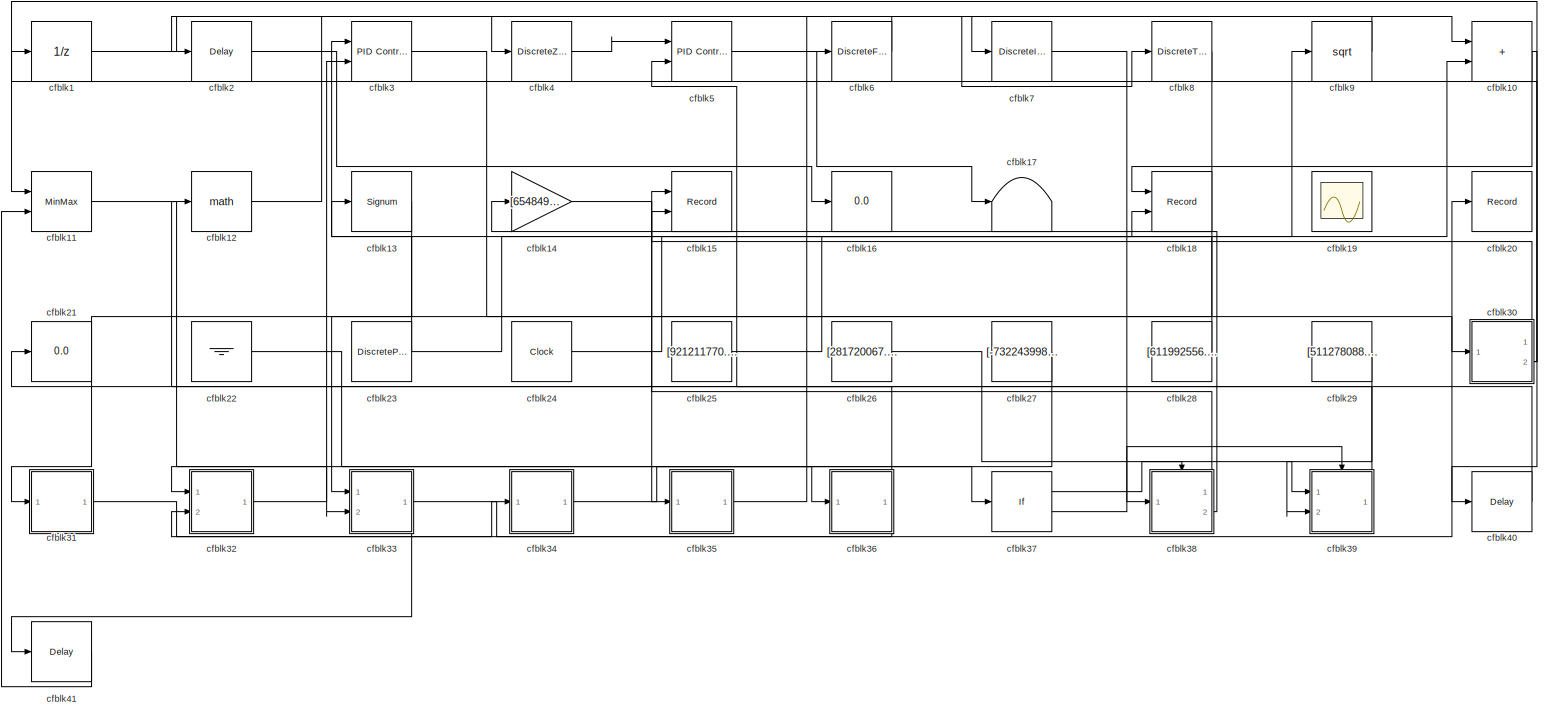
[diagram: root canvas - part 1/1, most of the canvas]
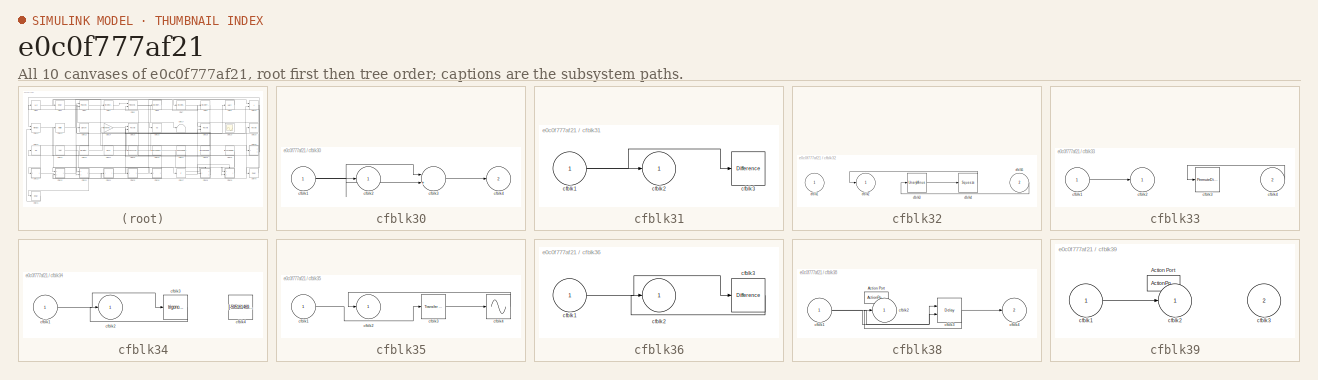
[diagram: thumbnail index - all 10 canvases of the model, root first then tree order]
MODEL slx_e0c0f777af21
KIND model
CONFIG AbsTol = auto
CONFIG EnableMultiTasking = off
CONFIG FixedStep = auto
CONFIG MaxStep = auto
CONFIG MinStep = auto
CONFIG RelTol = 1e-3
CONFIG SampleTimeConstraint = Unconstrained
CONFIG SolverName = VariableStepAuto
CONFIG StartTime = 0.0
CONFIG StopTime = 10.0
BLOCK [UnitDelay] cfblk1
  HasFrameUpgradeWarning = on
BLOCK [Sum] cfblk10
  IconShape = rectangular
  Ports = [2, 1]
BLOCK [MinMax] cfblk11
  Function = max
  Inputs = 2
  Ports = [2, 1]
BLOCK [Math] cfblk12
  Ports = [1, 1]
BLOCK [Signum] cfblk13
BLOCK [Gain] cfblk14
  Gain = [654849427.603270]
BLOCK [Record] cfblk15
  CompatibilityTag = XY
  FileSettingsInternal = {"entries":[{"content":{"excelSettings":{"content":{},"type":"Streamout.ExcelSettings"}},"type":"Streamout.FileSettingStorage","uuid":"87b09053-a77a-4a9e-8bec-8608d5d060ef"}],"packageUris":["http://schema.mathworks.com/mf0/streamout_blocks/R2020a"],"version":"1.0"}
  Layout = [1 1]
  Ports = [2]
  SignalsInternal = {"entries":[{"content":{"signals":[{"content":{"blockPath":["sampleModel264/cfblk15"],"channel":[],"dimensions":[1],"domain":"sampleModel264/cfblk15","lineColor":"#a2142f","plots":[1],"port":1,"sid":[""],"signalID":10963,"signalName":"cfblk38:1"},"type":"RecordBlkView.Signal","uuid":"1c1d3461-8ecc-4c0c-aa7a-5d9b7c4e959a"},{"content":{"blockPath":["sampleModel264/cfblk15"],"channel":[],"dimensions"...<+389ch>
  VisualizationBindings = {"xyplotplugin":{"info":[{"series":[{"bindingParametersList":[{"parameter":"X-Axis","signalID":10963,"signalName":"cfblk38:1"},{"parameter":"Y-Axis","signalID":10967,"signalName":"cfblk30:1"}],"seriesID":8609}],"subplotID":1}]}}
BLOCK [Display] cfblk16
  Decimation = 1
  Ports = [1]
BLOCK [Terminator] cfblk17
BLOCK [Record] cfblk18
  CompatibilityTag = XY
  FileSettingsInternal = {"entries":[{"content":{"excelSettings":{"content":{},"type":"Streamout.ExcelSettings"}},"type":"Streamout.FileSettingStorage","uuid":"e408a021-66fe-4499-80ff-48ba78554e90"}],"packageUris":["http://schema.mathworks.com/mf0/streamout_blocks/R2020a"],"version":"1.0"}
  Layout = [1 1]
  Ports = [2]
  SignalsInternal = {"entries":[{"content":{"signals":[{"content":{"blockPath":["sampleModel264/cfblk18"],"channel":[],"dimensions":[1],"domain":"sampleModel264/cfblk18","lineColor":"#a2142f","plots":[1],"port":1,"sid":[""],"signalID":10971,"signalName":"cfblk10"},"type":"RecordBlkView.Signal","uuid":"3a710b1b-58d1-44e6-873a-359d775209f8"},{"content":{"blockPath":["sampleModel264/cfblk18"],"channel":[],"dimensions":[...<+385ch>
  VisualizationBindings = {"xyplotplugin":{"info":[{"series":[{"bindingParametersList":[{"parameter":"X-Axis","signalID":10971,"signalName":"cfblk10"},{"parameter":"Y-Axis","signalID":10975,"signalName":"cfblk25"}],"seriesID":10129}],"subplotID":1}]}}
BLOCK [Scope] cfblk19
  Floating = on
  NumInputPorts = 1
  Ports = []
BLOCK [Delay] cfblk2
  InputPortMap = u0
  Ports = [1, 1]
  SampleTime = 1
BLOCK [Record] cfblk20
  FileSettingsInternal = {"entries":[{"content":{"excelSettings":{"content":{},"type":"Streamout.ExcelSettings"}},"type":"Streamout.FileSettingStorage","uuid":"be7c116d-fe5e-441c-a5bb-7647be8af16f"}],"packageUris":["http://schema.mathworks.com/mf0/streamout_blocks/R2020a"],"version":"1.0"}
  Ports = [1]
  SignalsInternal = {"entries":[{"content":{"signals":[{"content":{"blockPath":["sampleModel264/cfblk20"],"channel":[],"dimensions":[1],"domain":"sampleModel264/cfblk20","lineColor":"#ff6929","plots":[1],"port":1,"sid":[""],"signalID":10979,"signalName":"cfblk33"},"type":"RecordBlkView.Signal","uuid":"b8781fc3-0edb-411b-9528-19bbc625d2f5"}]},"type":"RecordBlkView.InputSignals","uuid":"c04048e7-6647-4468-bb8a-5f250a70...<+98ch>
  VisualizationBindings = {"sparklinesplugin":{"info":[{"bindingParametersList":[],"subplotID":1}]}}
BLOCK [Display] cfblk21
  Decimation = 1
  Ports = [1]
BLOCK [Ground] cfblk22
BLOCK [DiscretePulseGenerator] cfblk23
  Amplitude = [-625805775.989914]
  Period = [26020905.178933]
  PhaseDelay = [3.000000]
  Ports = [0, 1]
  PulseType = Time based
  PulseWidth = 5
BLOCK [Clock] cfblk24
BLOCK [Constant] cfblk25
  SampleTime = 1
  Value = [921211770.474066]
BLOCK [Constant] cfblk26
  SampleTime = 1
  Value = [281720067.728298]
BLOCK [Constant] cfblk27
  SampleTime = 1
  Value = [-732243998.912194]
BLOCK [Constant] cfblk28
  SampleTime = 1
  Value = [611992556.644639]
BLOCK [Constant] cfblk29
  SampleTime = 1
  Value = [511278088.233812]
BLOCK [Reference] cfblk3  REF=slpidlib/PID Controller (2DOF)
  Ports = [2, 1]
  SourceBlock = slpidlib/PID Controller (2DOF)
  SourceProductBaseCode = SL
  SourceType = PID 2dof
BLOCK [SubSystem] cfblk30
  Ports = [1, 2]
  RequestExecContextInheritance = off
BLOCK [Inport] cfblk30/cfblk1
BLOCK [Outport] cfblk30/cfblk2
BLOCK [Sum] cfblk30/cfblk3
  Inputs = |++
  Ports = [2, 1]
BLOCK [Outport] cfblk30/cfblk4
  Port = 2
BLOCK [SubSystem] cfblk31
  Ports = [1, 1]
  RequestExecContextInheritance = off
BLOCK [Inport] cfblk31/cfblk1
BLOCK [Outport] cfblk31/cfblk2
BLOCK [Reference] cfblk31/cfblk3  REF=simulink/Discrete/Difference
  Ports = [1, 1]
  SourceBlock = simulink/Discrete/Difference
  SourceProductBaseCode = SL
  SourceType = Difference
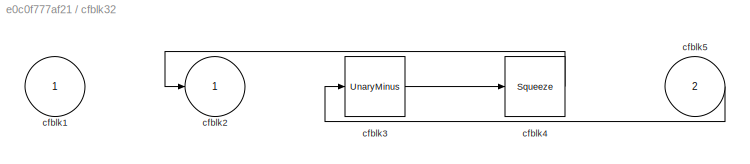
BLOCK [SubSystem] cfblk32
  Ports = [2, 1]
  RequestExecContextInheritance = off
BLOCK [Inport] cfblk32/cfblk1
BLOCK [Outport] cfblk32/cfblk2
BLOCK [UnaryMinus] cfblk32/cfblk3
BLOCK [Squeeze] cfblk32/cfblk4
BLOCK [Inport] cfblk32/cfblk5
  Port = 2
BLOCK [SubSystem] cfblk33
  Ports = [2, 1]
  RequestExecContextInheritance = off
BLOCK [Inport] cfblk33/cfblk1
BLOCK [Outport] cfblk33/cfblk2
BLOCK [PermuteDimensions] cfblk33/cfblk3
BLOCK [Inport] cfblk33/cfblk4
  Port = 2
BLOCK [SubSystem] cfblk34
  Ports = [1, 1]
  RequestExecContextInheritance = off
BLOCK [Inport] cfblk34/cfblk1
BLOCK [Outport] cfblk34/cfblk2
BLOCK [Trigonometry] cfblk34/cfblk3
  Ports = [1, 1]
BLOCK [Constant] cfblk34/cfblk4
  SampleTime = 1
  Value = [-595161469.670034]
BLOCK [SubSystem] cfblk35
  Ports = [1, 1]
  RequestExecContextInheritance = off
BLOCK [Inport] cfblk35/cfblk1
BLOCK [Outport] cfblk35/cfblk2
BLOCK [Reference] cfblk35/cfblk3  REF=simulink/Discrete/Transfer Fcn
Real Zero
  Ports = [1, 1]
  SourceBlock = simulink/Discrete/Transfer Fcn\nReal Zero
  SourceProductBaseCode = SL
  SourceType = Transfer Fcn Real Zero
BLOCK [Sin] cfblk35/cfblk4
  Ports = [1, 1]
  SampleTime = 0
  TimeSource = Use external signal
BLOCK [SubSystem] cfblk36
  Ports = [1, 1]
  RequestExecContextInheritance = off
BLOCK [Inport] cfblk36/cfblk1
BLOCK [Outport] cfblk36/cfblk2
BLOCK [Reference] cfblk36/cfblk3  REF=simulink/Discrete/Difference
  Ports = [1, 1]
  SourceBlock = simulink/Discrete/Difference
  SourceProductBaseCode = SL
  SourceType = Difference
BLOCK [If] cfblk37
  IfExpression = u1 >= 0
  Ports = [1, 2]
  SampleTime = 1
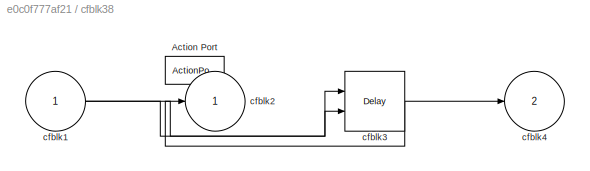
BLOCK [SubSystem] cfblk38
  Ports = [1, 2, 0, 0, 0, 0, 0, 1]
  RequestExecContextInheritance = off
  TreatAsAtomicUnit = on
BLOCK [ActionPort] cfblk38/Action Port
  ActionPortLabel = if(u1 >= 0)
BLOCK [Inport] cfblk38/cfblk1
BLOCK [Outport] cfblk38/cfblk2
BLOCK [Delay] cfblk38/cfblk3
  DelayLengthSource = Input port
  InputPortMap = u0,p1
  Ports = [2, 1]
BLOCK [Outport] cfblk38/cfblk4
  Port = 2
BLOCK [SubSystem] cfblk39
  Ports = [2, 1, 0, 0, 0, 0, 0, 1]
  RequestExecContextInheritance = off
  TreatAsAtomicUnit = on
BLOCK [ActionPort] cfblk39/Action Port
  ActionPortLabel = else
BLOCK [Inport] cfblk39/cfblk1
BLOCK [Outport] cfblk39/cfblk2
BLOCK [Inport] cfblk39/cfblk3
  Port = 2
BLOCK [DiscreteZeroPole] cfblk4
  Gain = 1
  Poles = [0 0.5]
BLOCK [Delay] cfblk40
  InputPortMap = u0
  Ports = [1, 1]
  SampleTime = 1
BLOCK [Delay] cfblk41
  InputPortMap = u0
  Ports = [1, 1]
  SampleTime = 1
BLOCK [Reference] cfblk5  REF=slpidlib/PID Controller (2DOF)
  Ports = [2, 1]
  SourceBlock = slpidlib/PID Controller (2DOF)
  SourceProductBaseCode = SL
  SourceType = PID 2dof
BLOCK [DiscreteFir] cfblk6
  InputPortMap = u0
  OutputPortMap = o0
  Ports = [1, 1]
  SampleTime = 1
BLOCK [DiscreteIntegrator] cfblk7
  ICPrevOutput = DiscIntNeverNeededParam
  ICPrevScaledInput = DiscIntNeverNeededParam
  InitialConditionSetting = Auto
  Ports = [1, 1]
BLOCK [DiscreteTransferFcn] cfblk8
  InputPortMap = u0
  Ports = [1, 1]
  SampleTime = 1
BLOCK [Sqrt] cfblk9
NET cfblk10:1 -> cfblk18:1, cfblk40:1
LINE cfblk11:1 -> cfblk33:2
LINE cfblk12:1 -> cfblk8:1
LINE cfblk13:1 -> cfblk31:1
LINE cfblk14:1 -> cfblk35:1
LINE cfblk1:1 -> cfblk4:1
LINE cfblk22:1 -> cfblk36:1
NET cfblk23:1 -> cfblk10:2, cfblk3:1
LINE cfblk24:1 -> cfblk9:1
LINE cfblk25:1 -> cfblk18:2
LINE cfblk26:1 -> cfblk39:1
LINE cfblk27:1 -> cfblk32:1
LINE cfblk28:1 -> cfblk13:1
LINE cfblk29:1 -> cfblk39:2
LINE cfblk2:1 -> cfblk16:1
NET cfblk30/cfblk1:1 -> cfblk30/cfblk2:1, cfblk30/cfblk3:1, cfblk30/cfblk3:2
LINE cfblk30/cfblk3:1 -> cfblk30/cfblk4:1
LINE cfblk30:1 -> cfblk15:2
NET cfblk30:2 -> cfblk11:1, cfblk1:1
NET cfblk31/cfblk1:1 -> cfblk31/cfblk2:1, cfblk31/cfblk3:1
LINE cfblk31:1 -> cfblk34:1
LINE cfblk32/cfblk3:1 -> cfblk32/cfblk4:1
LINE cfblk32/cfblk4:1 -> cfblk32/cfblk2:1
LINE cfblk32/cfblk5:1 -> cfblk32/cfblk3:1
LINE cfblk32:1 -> cfblk3:2
LINE cfblk33/cfblk1:1 -> cfblk33/cfblk2:1
LINE cfblk33/cfblk4:1 -> cfblk33/cfblk3:1
NET cfblk33:1 -> cfblk20:1, cfblk41:1
LINE cfblk34/cfblk1:1 -> cfblk34/cfblk3:1
LINE cfblk34/cfblk3:1 -> cfblk34/cfblk2:1
LINE cfblk34:1 -> cfblk37:1
LINE cfblk35/cfblk1:1 -> cfblk35/cfblk3:1
LINE cfblk35/cfblk3:1 -> cfblk35/cfblk4:1
LINE cfblk35/cfblk4:1 -> cfblk35/cfblk2:1
LINE cfblk35:1 -> cfblk6:1
LINE cfblk36/cfblk1:1 -> cfblk36/cfblk3:1
LINE cfblk36/cfblk3:1 -> cfblk36/cfblk2:1
NET cfblk36:1 -> cfblk21:1, cfblk32:2
LINE cfblk37:1 -> cfblk38:ifaction
LINE cfblk37:2 -> cfblk39:ifaction
NET cfblk38/cfblk1:1 -> cfblk38/cfblk3:1, cfblk38/cfblk3:2
NET cfblk38/cfblk3:1 -> cfblk38/cfblk2:1, cfblk38/cfblk4:1
LINE cfblk38:1 -> cfblk15:1
LINE cfblk38:2 -> cfblk14:1
LINE cfblk39/cfblk1:1 -> cfblk39/cfblk2:1
LINE cfblk39:1 -> cfblk12:1
LINE cfblk3:1 -> cfblk30:1
LINE cfblk40:1 -> cfblk5:2
LINE cfblk41:1 -> cfblk11:2
LINE cfblk4:1 -> cfblk5:1
NET cfblk5:1 -> cfblk10:1, cfblk17:1
LINE cfblk6:1 -> cfblk2:1
LINE cfblk7:1 -> cfblk38:1
LINE cfblk8:1 -> cfblk33:1
LINE cfblk9:1 -> cfblk7:1
note: NET lines group one-source signal fan-out (src -> all destinations, sorted); 1:1 wires keep LINE
